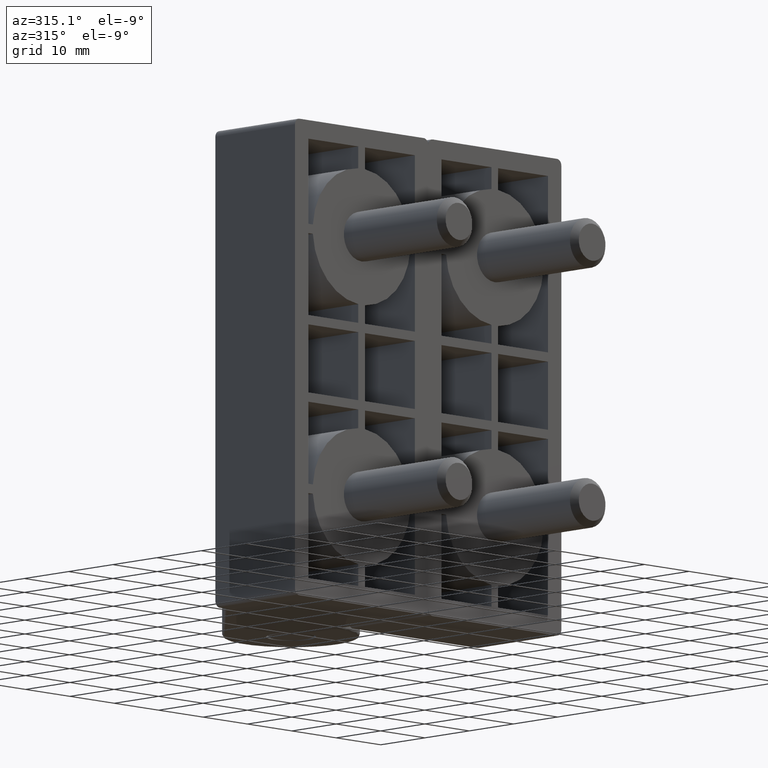
[diagram: clean part render]
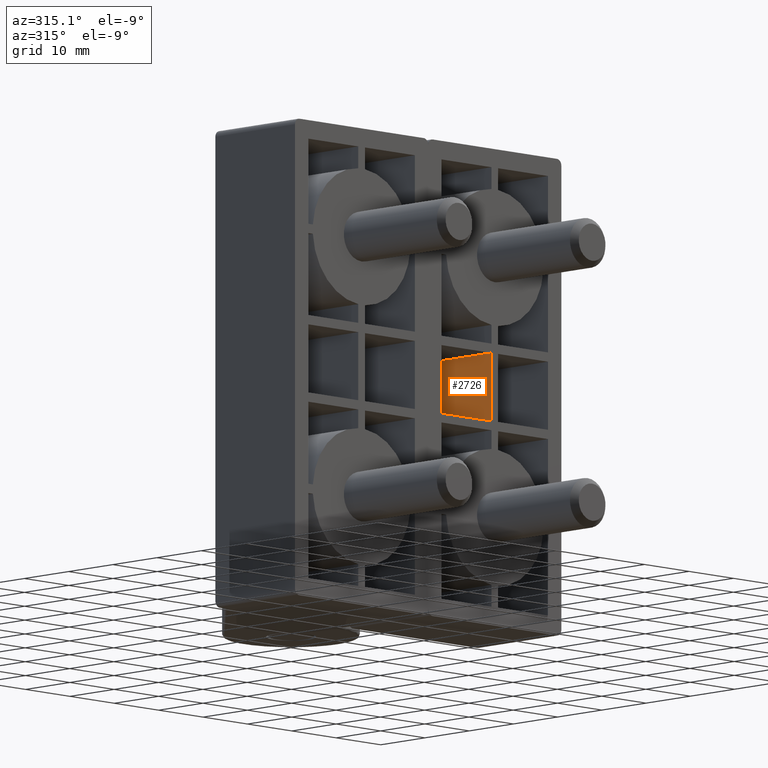
[diagram: same view with one face highlighted and labeled with its STEP entity id]
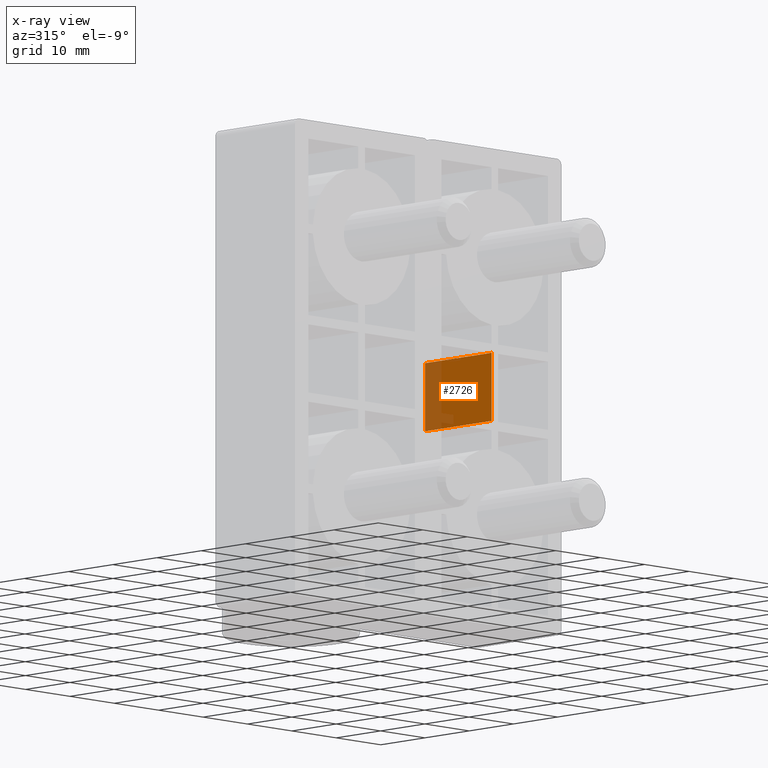
[diagram: x-ray of the same camera — body ghosted, the highlighted face saturated]
A machine part, auxiliary view. The second image highlights one B-rep face of the part: STEP entity #2726.
The next image is the same camera in x-ray: the body ghosted, the highlighted face saturated — about 28% of this face is hidden behind the body in this view.
In plain terms, the highlighted planar face has unit normal (1, 0, 0).
Its self-contained STEP definition (entity closure, byte-faithful):
#123=LINE('',#4220,#366);
#245=LINE('',#4553,#488);
#246=LINE('',#4556,#489);
#247=LINE('',#4557,#490);
#366=VECTOR('',#3367,11.);
#488=VECTOR('',#3711,15.);
#489=VECTOR('',#3714,11.);
#490=VECTOR('',#3715,15.);
#627=PLANE('',#2990);
#860=FACE_OUTER_BOUND('',#1050,.T.);
#1050=EDGE_LOOP('',(#2445,#2446,#2447,#2448));
#1330=VERTEX_POINT('',#4214);
#1332=VERTEX_POINT('',#4218);
#1420=VERTEX_POINT('',#4551);
#1421=VERTEX_POINT('',#4555);
#1623=EDGE_CURVE('',#1330,#1332,#123,.T.);
#1773=EDGE_CURVE('',#1420,#1332,#245,.T.);
#1774=EDGE_CURVE('',#1421,#1420,#246,.T.);
#1775=EDGE_CURVE('',#1421,#1330,#247,.T.);
#2445=ORIENTED_EDGE('',*,*,#1623,.T.);
#2446=ORIENTED_EDGE('',*,*,#1773,.F.);
#2447=ORIENTED_EDGE('',*,*,#1774,.F.);
#2448=ORIENTED_EDGE('',*,*,#1775,.T.);
#2726=ADVANCED_FACE('',(#860),#627,.F.);
#2990=AXIS2_PLACEMENT_3D('',#4554,#3712,#3713);
#3367=DIRECTION('',(0.,0.,1.));
#3711=DIRECTION('',(0.,-1.,0.));
#3712=DIRECTION('center_axis',(1.,0.,0.));
#3713=DIRECTION('ref_axis',(0.,0.,-1.));
#3714=DIRECTION('',(0.,0.,1.));
#3715=DIRECTION('',(0.,-1.,0.));
#4214=CARTESIAN_POINT('',(14.2500000000004,-31.,-5.49999999999999));
#4218=CARTESIAN_POINT('',(14.2500000000004,-31.,5.50000000000001));
#4220=CARTESIAN_POINT('',(14.2500000000004,-31.,5.50000000000001));
#4551=CARTESIAN_POINT('',(14.2500000000004,-16.,5.50000000000001));
#4553=CARTESIAN_POINT('',(14.2500000000004,-16.,5.50000000000001));
#4554=CARTESIAN_POINT('Origin',(14.2500000000004,-16.,5.50000000000001));
#4555=CARTESIAN_POINT('',(14.2500000000004,-16.,-5.49999999999999));
#4556=CARTESIAN_POINT('',(14.2500000000004,-16.,5.50000000000001));
#4557=CARTESIAN_POINT('',(14.2500000000004,-16.,-5.49999999999999));